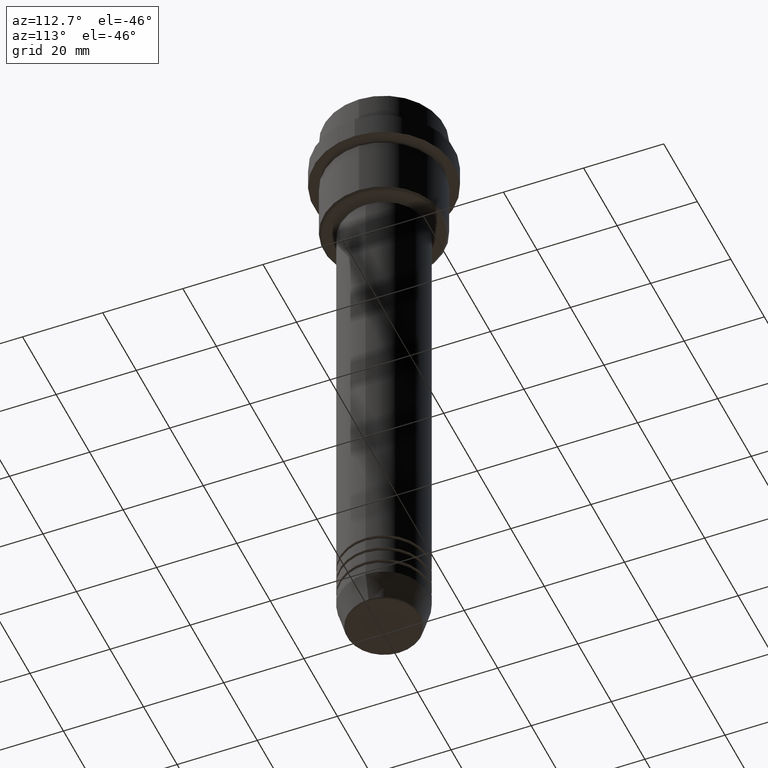
[diagram: clean part render]
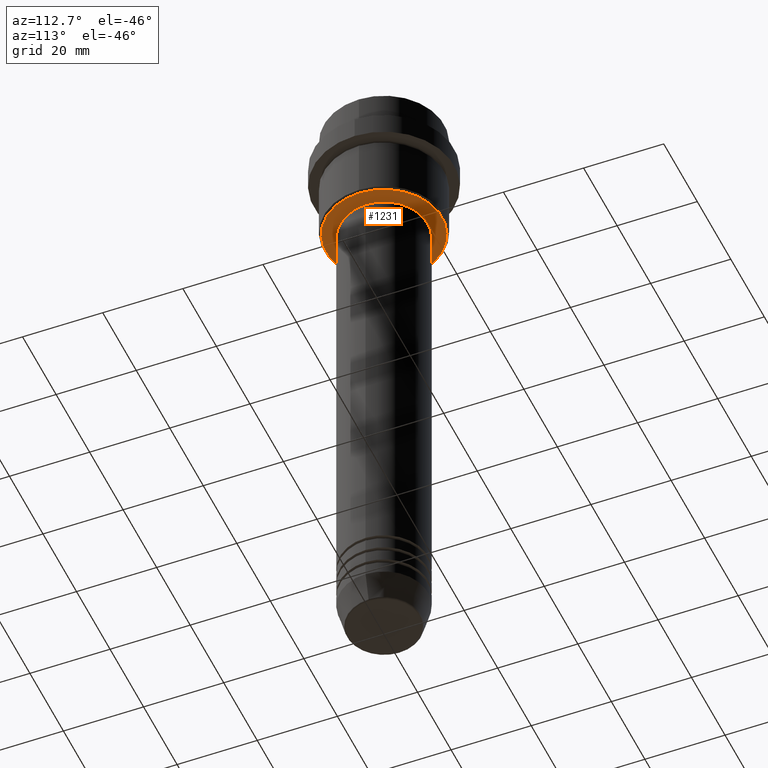
[diagram: same view with one face highlighted and labeled with its STEP entity id]
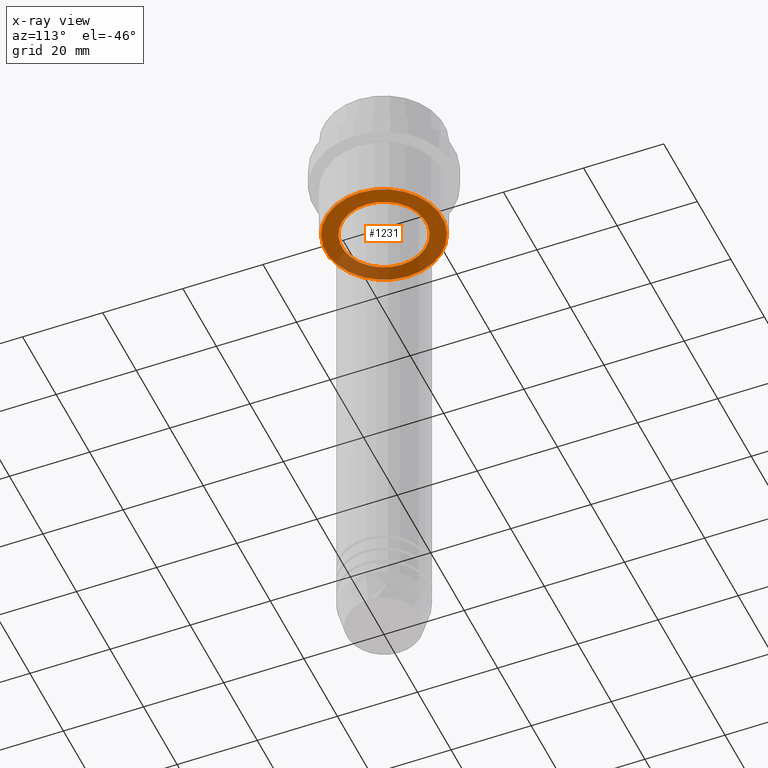
[diagram: x-ray of the same camera — body ghosted, the highlighted face saturated]
A machine part, auxiliary view. The second image highlights one B-rep face of the part: STEP entity #1231.
The next image is the same camera in x-ray: the body ghosted, the highlighted face saturated — about 30% of this face is hidden behind the body in this view.
In plain terms, the highlighted planar face has unit normal (0, 0, -1).
Its self-contained STEP definition (entity closure, byte-faithful):
#32 = CIRCLE ( 'NONE', #840, 14.49999999999998579 ) ;
#98 = VERTEX_POINT ( 'NONE', #274 ) ;
#111 = CARTESIAN_POINT ( 'NONE',  ( -14.49999999999998579, 1.806354028742345013E-15, -30.99999999999998579 ) ) ;
#117 = EDGE_CURVE ( 'NONE', #1282, #1258, #32, .T. ) ;
#152 = CIRCLE ( 'NONE', #224, 10.49999999999999289 ) ;
#178 = PLANE ( 'NONE',  #409 ) ;
#224 = AXIS2_PLACEMENT_3D ( 'NONE', #600, #814, #1217 ) ;
#225 = DIRECTION ( 'NONE',  ( -1.000000000000000000, 0.000000000000000000, 0.000000000000000000 ) ) ;
#274 = CARTESIAN_POINT ( 'NONE',  ( -10.49999999999999289, 1.285879139104720042E-15, -30.99999999999998579 ) ) ;
#294 = CIRCLE ( 'NONE', #932, 10.49999999999999289 ) ;
#301 = DIRECTION ( 'NONE',  ( 1.000000000000000000, 0.000000000000000000, 0.000000000000000000 ) ) ;
#314 = DIRECTION ( 'NONE',  ( -1.000000000000000000, 0.000000000000000000, -0.000000000000000000 ) ) ;
#315 = AXIS2_PLACEMENT_3D ( 'NONE', #987, #438, #225 ) ;
#350 = ORIENTED_EDGE ( 'NONE', *, *, #878, .T. ) ;
#409 = AXIS2_PLACEMENT_3D ( 'NONE', #625, #1191, #314 ) ;
#415 = ORIENTED_EDGE ( 'NONE', *, *, #117, .T. ) ;
#438 = DIRECTION ( 'NONE',  ( 0.000000000000000000, 0.000000000000000000, -1.000000000000000000 ) ) ;
#541 = CARTESIAN_POINT ( 'NONE',  ( 14.49999999999998579, 0.000000000000000000, -30.99999999999998579 ) ) ;
#600 = CARTESIAN_POINT ( 'NONE',  ( 0.000000000000000000, 0.000000000000000000, -30.99999999999998579 ) ) ;
#625 = CARTESIAN_POINT ( 'NONE',  ( 0.000000000000000000, 15.00000000000000000, -30.99999999999998579 ) ) ;
#634 = CARTESIAN_POINT ( 'NONE',  ( 0.000000000000000000, 0.000000000000000000, -30.99999999999998579 ) ) ;
#677 = EDGE_CURVE ( 'NONE', #1258, #1282, #1293, .T. ) ;
#740 = EDGE_LOOP ( 'NONE', ( #852, #350 ) ) ;
#742 = EDGE_CURVE ( 'NONE', #959, #98, #152, .T. ) ;
#814 = DIRECTION ( 'NONE',  ( -0.000000000000000000, -0.000000000000000000, 1.000000000000000000 ) ) ;
#817 = DIRECTION ( 'NONE',  ( -1.000000000000000000, 0.000000000000000000, 0.000000000000000000 ) ) ;
#840 = AXIS2_PLACEMENT_3D ( 'NONE', #1133, #1104, #817 ) ;
#851 = DIRECTION ( 'NONE',  ( -0.000000000000000000, -0.000000000000000000, 1.000000000000000000 ) ) ;
#852 = ORIENTED_EDGE ( 'NONE', *, *, #742, .T. ) ;
#878 = EDGE_CURVE ( 'NONE', #98, #959, #294, .T. ) ;
#932 = AXIS2_PLACEMENT_3D ( 'NONE', #634, #851, #301 ) ;
#959 = VERTEX_POINT ( 'NONE', #1187 ) ;
#987 = CARTESIAN_POINT ( 'NONE',  ( 0.000000000000000000, 0.000000000000000000, -30.99999999999998579 ) ) ;
#1036 = EDGE_LOOP ( 'NONE', ( #415, #1395 ) ) ;
#1104 = DIRECTION ( 'NONE',  ( 0.000000000000000000, 0.000000000000000000, -1.000000000000000000 ) ) ;
#1133 = CARTESIAN_POINT ( 'NONE',  ( 0.000000000000000000, 0.000000000000000000, -30.99999999999998579 ) ) ;
#1150 = FACE_BOUND ( 'NONE', #740, .T. ) ;
#1187 = CARTESIAN_POINT ( 'NONE',  ( 10.49999999999999289, 0.000000000000000000, -30.99999999999998579 ) ) ;
#1191 = DIRECTION ( 'NONE',  ( 0.000000000000000000, 0.000000000000000000, -1.000000000000000000 ) ) ;
#1217 = DIRECTION ( 'NONE',  ( 1.000000000000000000, 0.000000000000000000, 0.000000000000000000 ) ) ;
#1231 = ADVANCED_FACE ( 'NONE', ( #1371, #1150 ), #178, .T. ) ;
#1258 = VERTEX_POINT ( 'NONE', #111 ) ;
#1282 = VERTEX_POINT ( 'NONE', #541 ) ;
#1293 = CIRCLE ( 'NONE', #315, 14.49999999999998579 ) ;
#1371 = FACE_OUTER_BOUND ( 'NONE', #1036, .T. ) ;
#1395 = ORIENTED_EDGE ( 'NONE', *, *, #677, .T. ) ;